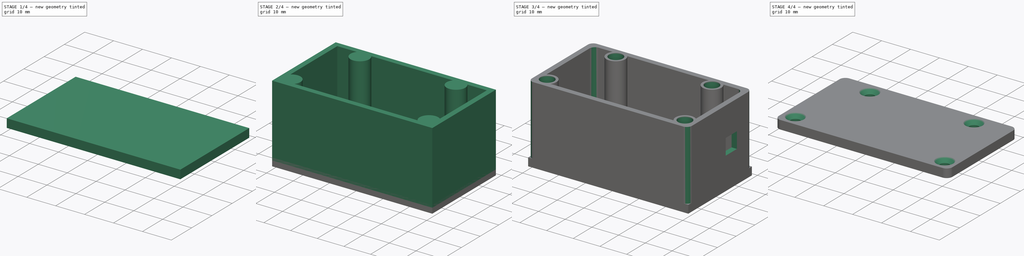
[diagram: build sequence overview — one tinted view per stage of 4, left to right]
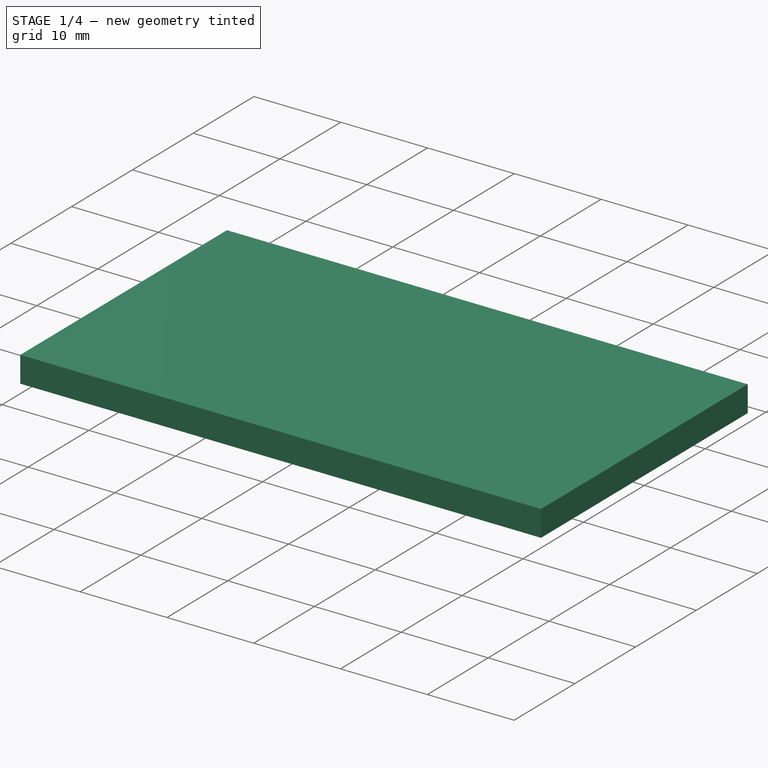
[diagram: stage 1 of 4 — iso view after this stage's code; geometry added in this stage tinted green]
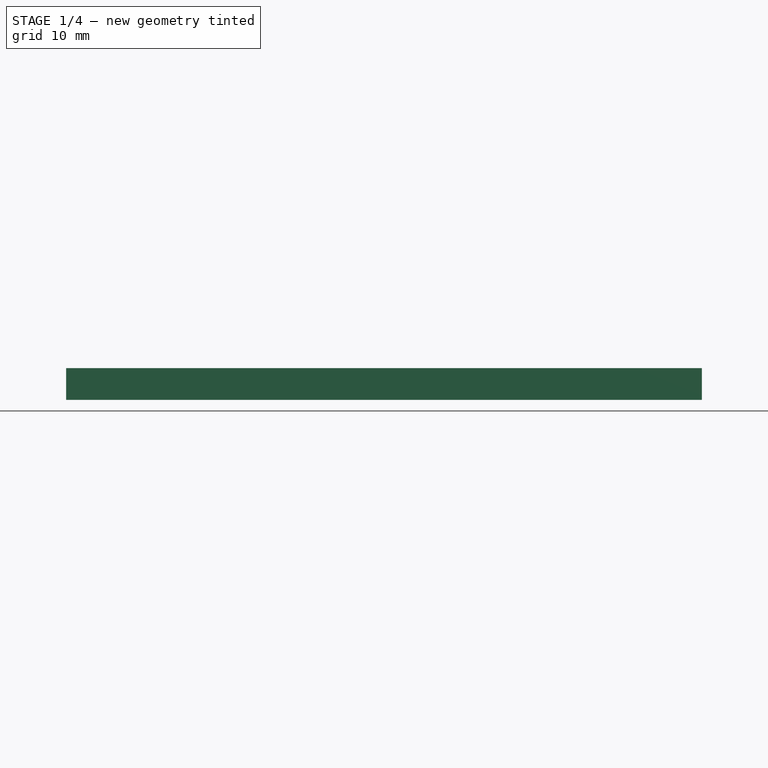
[diagram: stage 1 of 4 — front view after this stage's code; geometry added in this stage tinted green]
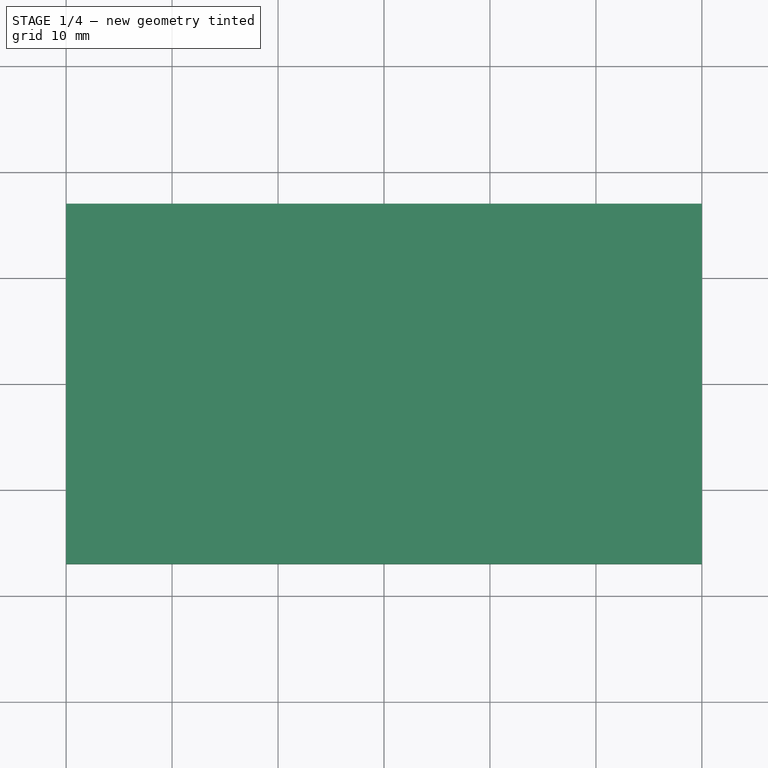
[diagram: stage 1 of 4 — top view after this stage's code; geometry added in this stage tinted green]
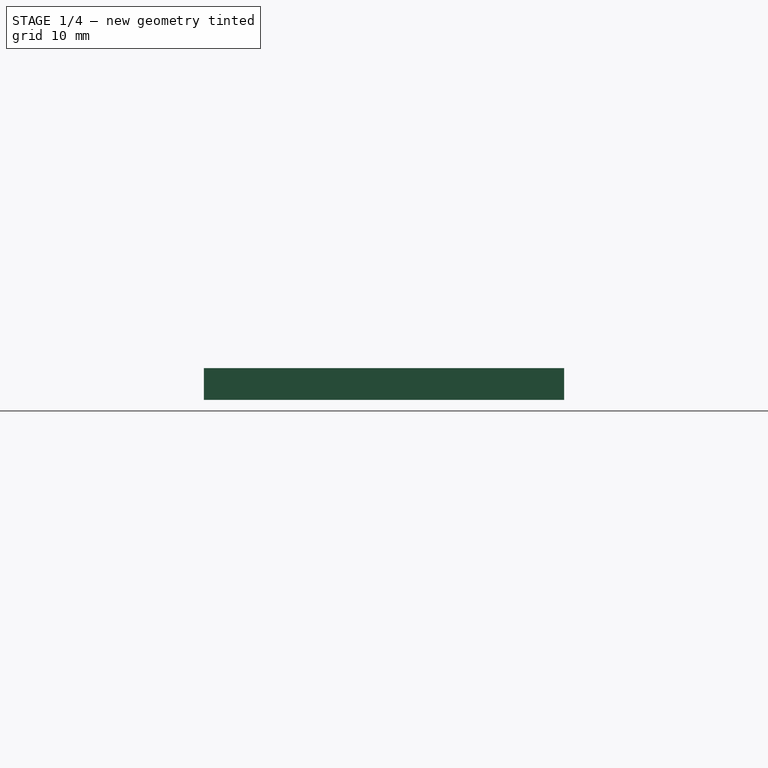
[diagram: stage 1 of 4 — right view after this stage's code; geometry added in this stage tinted green]
FCSTD DOCUMENT  (FreeCAD 0.21R33668 +7 (Git))
Label: battery_cap
License: All rights reserved
LicenseURL: http://en.wikipedia.org/wiki/All_rights_reserved
objects: Sketcher::SketchObject×5, PartDesign::Pad×4, PartDesign::Pocket×2, PartDesign::Hole×2, PartDesign::Fillet×2, PartDesign::Body×2, PartDesign::ShapeBinder×1, PartDesign::SubShapeBinder×1
note: 29 computed .brp shape members not serialized (recipe doc carries the construction recipe); baked Part::Feature solids carry a one-line shape summary decoded from their .brp

FEATURE [Sketcher::SketchObject] Sketch  label="FloorProfile"
  FullyConstrained = true
  MapMode = 5
  Support = -> [XY_Plane]
  sketch-geometry (4):
    g0: LineSegment StartX=-30 StartY=17 StartZ=0 EndX=30 EndY=17 EndZ=0
    g1: LineSegment StartX=30 StartY=17 StartZ=0 EndX=30 EndY=-17 EndZ=0
    g2: LineSegment StartX=30 StartY=-17 StartZ=0 EndX=-30 EndY=-17 EndZ=0
    g3: LineSegment StartX=-30 StartY=-17 StartZ=0 EndX=-30 EndY=17 EndZ=0
  constraints (10):
    c: Coincident(g0,g1)
    c: Coincident(g1,g2)
    c: Coincident(g2,g3)
    c: Coincident(g3,g0)
    c: Horizontal(g2)
    c: Vertical(g1)
    c: Symmetric(g0,g2,g-1)
    c: Symmetric(g0,g0,g-2)
    c: DistanceX(g0,g0) = 60  'Length'
    c: DistanceY(g1,g1) = 34  'Width'
FEATURE [PartDesign::Pad] Pad  label="Floor"
  Direction = (0,0,1)
  Length = 2
  Length2 = 10
  Profile = -> Sketch
  ReferenceAxis = -> Sketch [N_Axis]
  Type = 0
FEATURE [PartDesign::Body] Body  label="Cap"
  Group = -> [Sketch,Pad,Sketch001,Pad001,Sketch002,Pocket,Sketch003,Pad002,Hole,Sketch004,Pocket001,Fillet]
  Origin = -> Origin
  Tip = -> Fillet
FEATURE [PartDesign::ShapeBinder] ShapeBinder  label="FloorBinder"
  Support = -> [Sketch]
  TraceSupport = false
FEATURE [PartDesign::Pad] Pad003  label="CapFloor"
  Direction = (0,0,1)
  Length = 3
  Length2 = 10
  Profile = -> ShapeBinder
  Type = 0
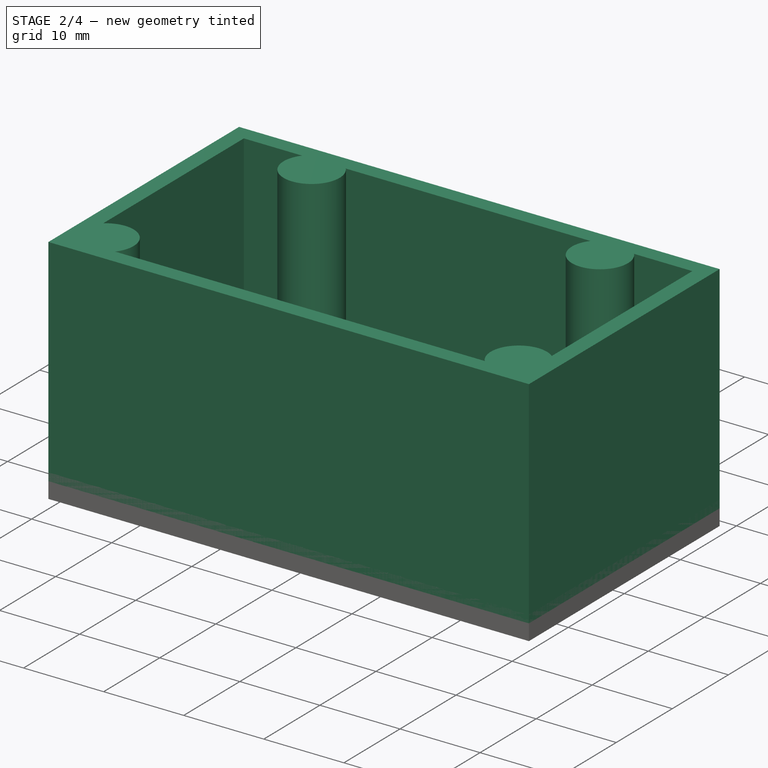
[diagram: stage 2 of 4 — iso view after this stage's code; geometry added in this stage tinted green]
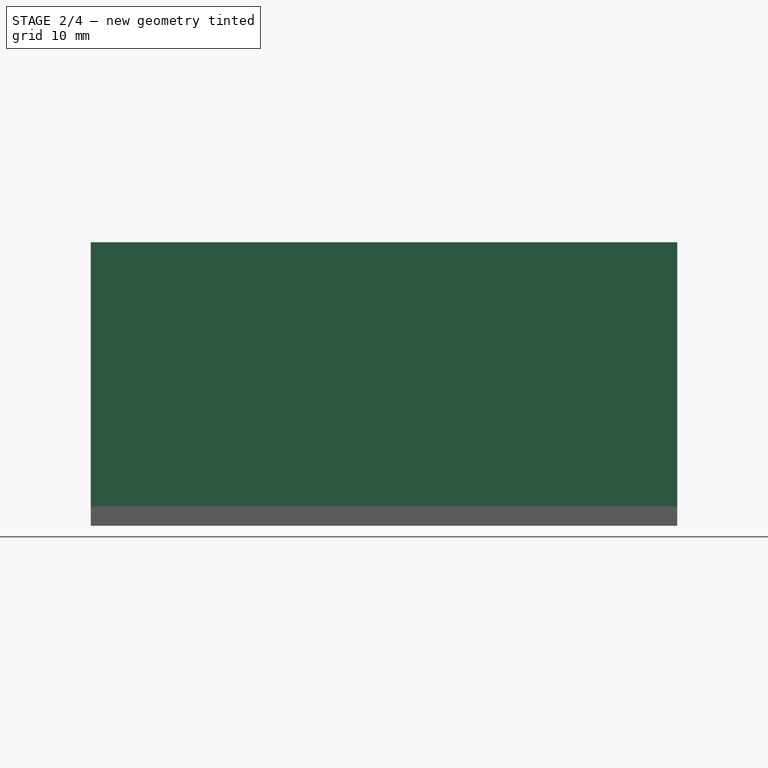
[diagram: stage 2 of 4 — front view after this stage's code; geometry added in this stage tinted green]
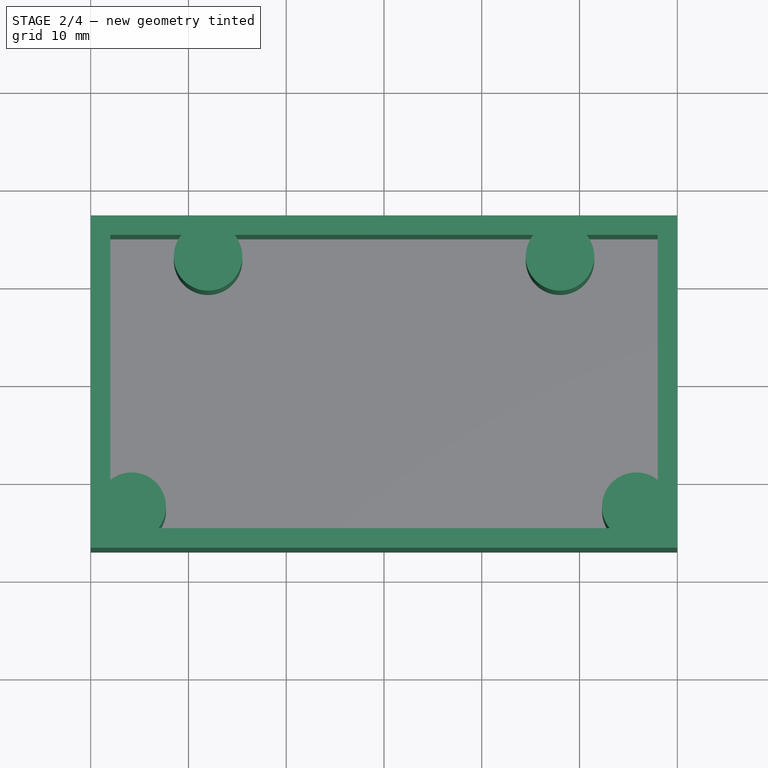
[diagram: stage 2 of 4 — top view after this stage's code; geometry added in this stage tinted green]
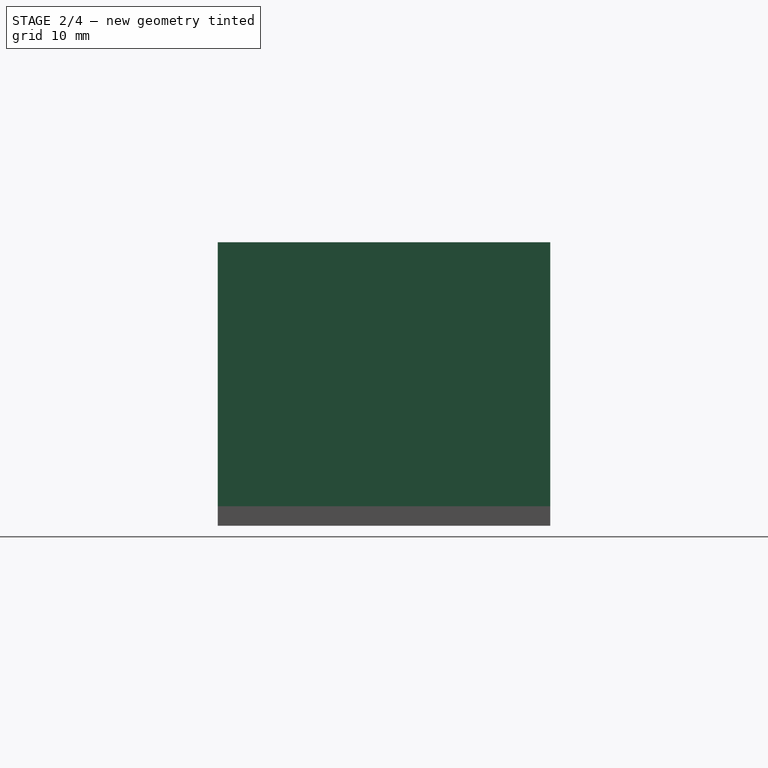
[diagram: stage 2 of 4 — right view after this stage's code; geometry added in this stage tinted green]
FEATURE [Sketcher::SketchObject] Sketch001  label="WallsProfile"
  AttachmentOffset = pos=(0,0,2) rot=(0,0,1;0rad)
  FullyConstrained = true
  MapMode = 5
  Placement = pos=(0,0,2) rot=(0,0,1;0rad)
  Support = -> [XY_Plane]
  expr: .AttachmentOffset.Base.z = <<Floor>>.Length
  expr: Constraints[20] = .Constraints.WallThickness
  expr: Constraints[8] = <<FloorProfile>>.Constraints.Length
  expr: Constraints[9] = <<FloorProfile>>.Constraints.Width
  sketch-geometry (8):
    g0: LineSegment StartX=-30 StartY=17 StartZ=0 EndX=30 EndY=17 EndZ=0
    g1: LineSegment StartX=30 StartY=17 StartZ=0 EndX=30 EndY=-17 EndZ=0
    g2: LineSegment StartX=30 StartY=-17 StartZ=0 EndX=-30 EndY=-17 EndZ=0
    g3: LineSegment StartX=-30 StartY=-17 StartZ=0 EndX=-30 EndY=17 EndZ=0
    g4: LineSegment StartX=-28 StartY=15 StartZ=0 EndX=28 EndY=15 EndZ=0
    g5: LineSegment StartX=28 StartY=15 StartZ=0 EndX=28 EndY=-15 EndZ=0
    g6: LineSegment StartX=28 StartY=-15 StartZ=0 EndX=-28 EndY=-15 EndZ=0
    g7: LineSegment StartX=-28 StartY=-15 StartZ=0 EndX=-28 EndY=15 EndZ=0
  constraints (21):
    c: Coincident(g0,g1)
    c: Coincident(g1,g2)
    c: Coincident(g2,g3)
    c: Coincident(g3,g0)
    c: Horizontal(g0)
    c: Vertical(g1)
    c: Symmetric(g2,g1,g-2)
    c: Symmetric(g2,g0,g-1)
    c: DistanceX(g2,g2) = 60
    c: DistanceY(g1,g1) = 34
    c: Coincident(g4,g5)
    c: Coincident(g5,g6)
    c: Coincident(g6,g7)
    c: Coincident(g7,g4)
    c: Horizontal(g4)
    c: Horizontal(g6)
    c: Vertical(g5)
    c: Vertical(g7)
    c: Symmetric(g6,g4,g-1)
    c: DistanceY(g2,g6) = 2  'WallThickness'
    c: DistanceX(g2,g6) = 2
FEATURE [PartDesign::Pad] Pad001  label="Walls"
  BaseFeature = -> Pad
  Direction = (0,0,1)
  Length = 27
  Length2 = 10
  Profile = -> Sketch001
  ReferenceAxis = -> Sketch001 [N_Axis]
  Type = 0
FEATURE [Sketcher::SketchObject] Sketch002  label="HolesProfile"
  AttachmentOffset = pos=(0,0,2) rot=(0,0,1;0rad)
  FullyConstrained = true
  MapMode = 5
  Placement = pos=(0,0,2) rot=(0,0,1;0rad)
  Support = -> [XY_Plane]
  expr: Constraints[1] = .Constraints.HoleDiameter
  expr: Constraints[2] = .Constraints.HoleDiameter
  expr: Constraints[3] = .Constraints.HoleDiameter
  sketch-geometry (4):
    g0: Circle CenterX=-25 CenterY=12.1 CenterZ=0 NormalX=0 NormalY=0 NormalZ=1 AngleXU=0 Radius=1.6
    g1: Circle CenterX=-19.6 CenterY=-12.2 CenterZ=0 NormalX=0 NormalY=0 NormalZ=1 AngleXU=0 Radius=1.6
    g2: Circle CenterX=25.2 CenterY=11.9 CenterZ=0 NormalX=0 NormalY=0 NormalZ=1 AngleXU=0 Radius=1.6
    g3: Circle CenterX=19.6 CenterY=-12.2 CenterZ=0 NormalX=0 NormalY=0 NormalZ=1 AngleXU=0 Radius=1.6
  constraints (11):
    c: Diameter(g0) = 3.2  'HoleDiameter'
    c: Diameter(g2) = 3.2
    c: Diameter(g3) = 3.2
    c: Diameter(g1) = 3.2
    c: DistanceY(g1,g0) = 24.3
    c: DistanceX(g0,g1) = 5.4
    c: DistanceX(g0,g2) = 50.2
    c: DistanceY(g2,g0) = 0.2
    c: DistanceX(g0,g3) = 44.6
    c: Symmetric(g1,g3,g-2)
    c: DistanceY(g-1,g0) = 12.1
FEATURE [PartDesign::Pocket] Pocket
  BaseFeature = -> Pad001
  Direction = (0,0,-1)
  Length = 5
  Length2 = 5
  Profile = -> Sketch002
  ReferenceAxis = -> Sketch002 [N_Axis]
  Type = 2
FEATURE [Sketcher::SketchObject] Sketch003  label="BossesProfile"
  AttachmentOffset = pos=(0,0,29) rot=(0,0,1;0rad)
  FullyConstrained = true
  MapMode = 5
  Placement = pos=(0,0,29) rot=(0,0,1;0rad)
  Support = -> [XY_Plane]
  expr: .AttachmentOffset.Base.z = <<Floor>>.Length + <<Walls>>.Length
  expr: Constraints[1] = <<FloorProfile>>.Constraints.Length / 2 - 4.2 mm
  expr: Constraints[2] = <<FloorProfile>>.Constraints.Width / 2 - 4.2 mm
  expr: Constraints[3] = .Constraints.BossDiameter
  expr: Constraints[5] = .Constraints.BossDiameter
  expr: Constraints[6] = .Constraints.BossDiameter
  expr: Constraints[7] = <<FloorProfile>>.Constraints.Width / 2 - 4.2 mm
  sketch-geometry (4):
    g0: Circle CenterX=-25.8 CenterY=-12.8 CenterZ=0 NormalX=0 NormalY=0 NormalZ=1 AngleXU=0 Radius=3.5
    g1: Circle CenterX=25.8 CenterY=-12.8 CenterZ=0 NormalX=0 NormalY=0 NormalZ=1 AngleXU=0 Radius=3.5
    g2: Circle CenterX=-18 CenterY=12.8 CenterZ=0 NormalX=0 NormalY=0 NormalZ=1 AngleXU=0 Radius=3.5
    g3: Circle CenterX=18 CenterY=12.8 CenterZ=0 NormalX=0 NormalY=0 NormalZ=1 AngleXU=0 Radius=3.5
  constraints (10):
    c: Diameter(g0) = 7  'BossDiameter'
    c: DistanceX(g0,g-1) = 25.8
    c: DistanceY(g0,g-1) = 12.8
    c: Diameter(g1) = 7
    c: Symmetric(g1,g0,g-2)
    c: Diameter(g2) = 7
    c: Diameter(g3) = 7
    c: DistanceY(g-1,g2) = 12.8
    c: DistanceX(g2,g-1) = 18
    c: Symmetric(g3,g2,g-2)
FEATURE [PartDesign::Pad] Pad002  label="Bosses"
  BaseFeature = -> Pocket
  Direction = (0,0,1)
  Length = 27
  Length2 = 10
  Profile = -> Sketch003
  ReferenceAxis = -> Sketch003 [N_Axis]
  Reversed = true
  Type = 0
  expr: Length = <<Walls>>.Length
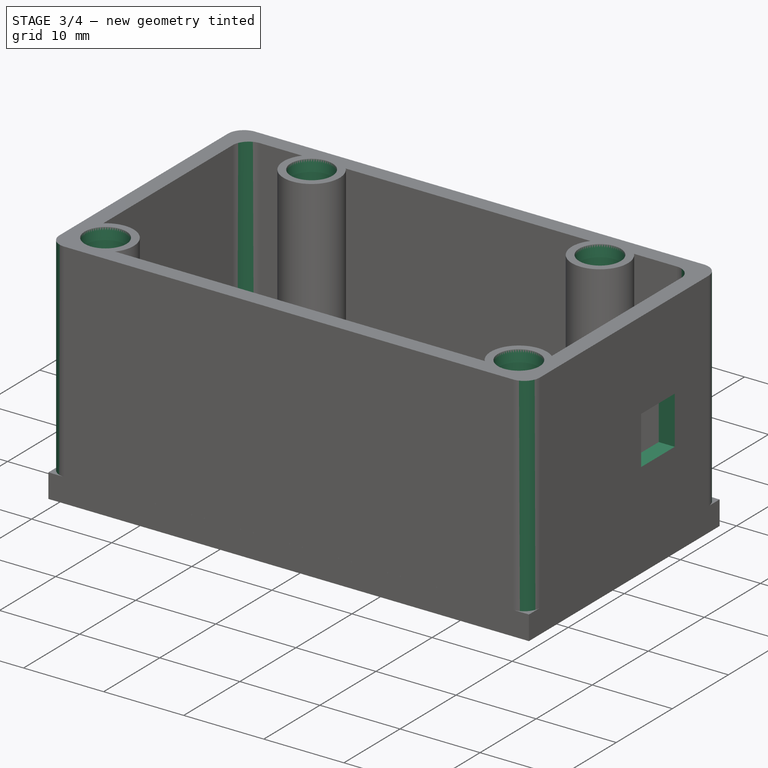
[diagram: stage 3 of 4 — iso view after this stage's code; geometry added in this stage tinted green]
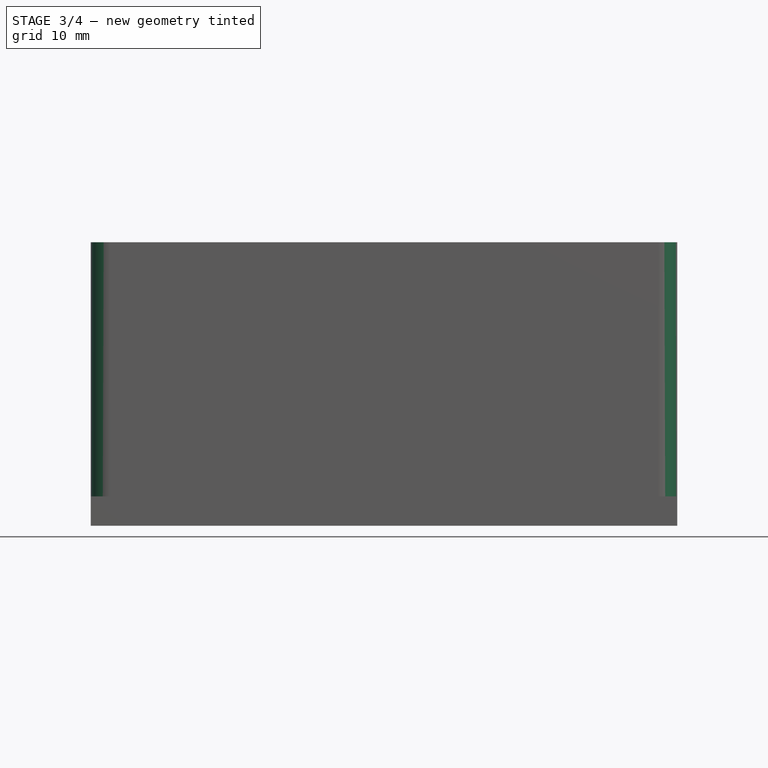
[diagram: stage 3 of 4 — front view after this stage's code; geometry added in this stage tinted green]
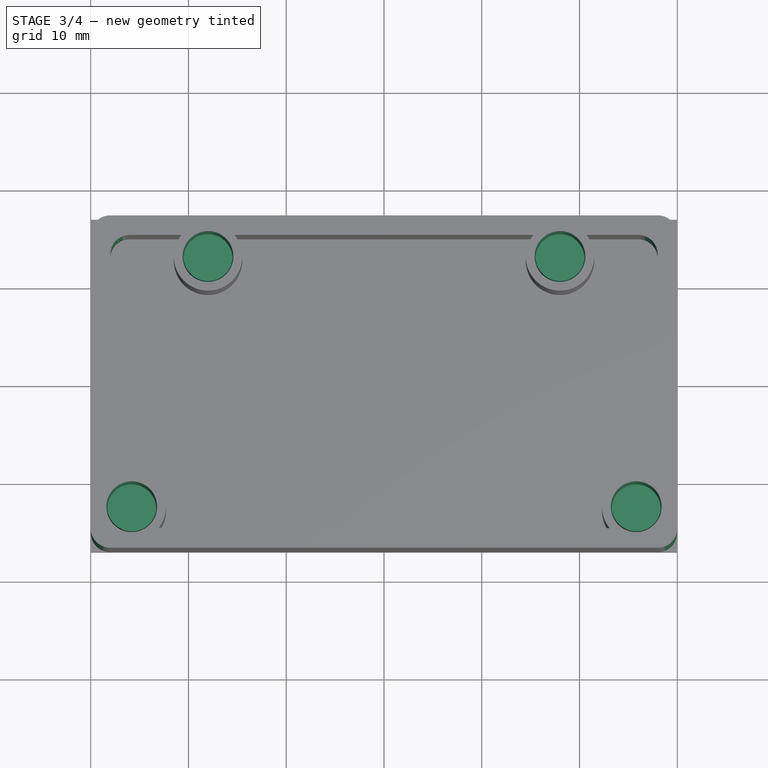
[diagram: stage 3 of 4 — top view after this stage's code; geometry added in this stage tinted green]
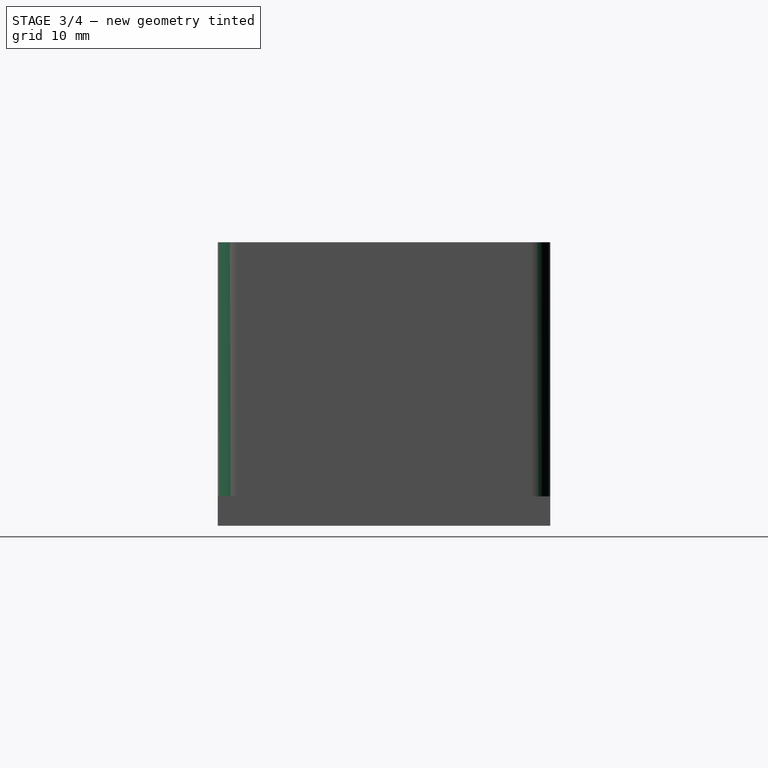
[diagram: stage 3 of 4 — right view after this stage's code; geometry added in this stage tinted green]
FEATURE [PartDesign::Hole] Hole
  BaseFeature = -> Pad002
  CustomThreadClearance = 0
  Depth = 13
  DepthType = 0
  Diameter = 5
  DrillForDepth = false
  DrillPoint = 0
  DrillPointAngle = 118
  HoleCutCountersinkAngle = 8
  HoleCutCustomValues = false
  HoleCutDepth = 0
  HoleCutDiameter = 5.2
  HoleCutType = 2
  ModelThread = false
  Profile = -> Sketch003
  Tapered = false
  TaperedAngle = 90
  ThreadClass = 0
  ThreadDepth = 13
  ThreadDepthType = 0
  ThreadDirection = 0
  ThreadFit = 0
  ThreadSize = 0
  ThreadType = 0
  Threaded = false
  UseCustomThreadClearance = false
FEATURE [Sketcher::SketchObject] Sketch004
  AttachmentOffset = pos=(0,0,30) rot=(0,0,1;0rad)
  FullyConstrained = true
  MapMode = 5
  Placement = pos=(30,-6.7e-15,6.7e-15) rot=(0.57735,0.57735,0.57735;2.0944rad)
  Support = -> [YZ_Plane]
  expr: .AttachmentOffset.Base.z = <<FloorProfile>>.Constraints.Length / 2
  sketch-geometry (4):
    g0: LineSegment StartX=3 StartY=18 StartZ=0 EndX=9 EndY=18 EndZ=0
    g1: LineSegment StartX=9 StartY=18 StartZ=0 EndX=9 EndY=12 EndZ=0
    g2: LineSegment StartX=9 StartY=12 StartZ=0 EndX=3 EndY=12 EndZ=0
    g3: LineSegment StartX=3 StartY=12 StartZ=0 EndX=3 EndY=18 EndZ=0
  constraints (12):
    c: Coincident(g0,g1)
    c: Coincident(g1,g2)
    c: Coincident(g2,g3)
    c: Coincident(g3,g0)
    c: Horizontal(g0)
    c: Horizontal(g2)
    c: Vertical(g1)
    c: Vertical(g3)
    c: DistanceX(g2,g2) = 6
    c: DistanceY(g1,g1) = 6
    c: DistanceY(g-1,g1) = 12
    c: DistanceX(g-1,g2) = 3
FEATURE [PartDesign::Pocket] Pocket001
  BaseFeature = -> Hole
  Direction = (-1,2e-16,-3e-16)
  Length = 5
  Length2 = 5
  Profile = -> Sketch004
  ReferenceAxis = -> Sketch004 [N_Axis]
  Type = 2
FEATURE [PartDesign::Fillet] Fillet
  Base = -> Pocket001 [Edge23,Edge17,Edge86,Edge70,Edge16,Edge20]
  BaseFeature = -> Pocket001
  Radius = 2
  SupportTransform = false
  UseAllEdges = false
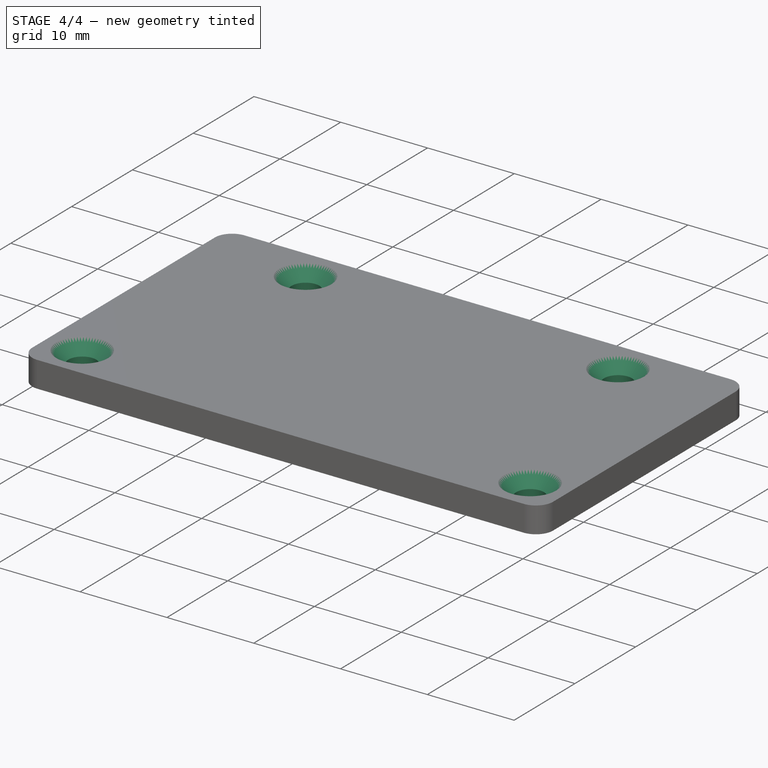
[diagram: stage 4 of 4 — iso view after this stage's code; geometry added in this stage tinted green]
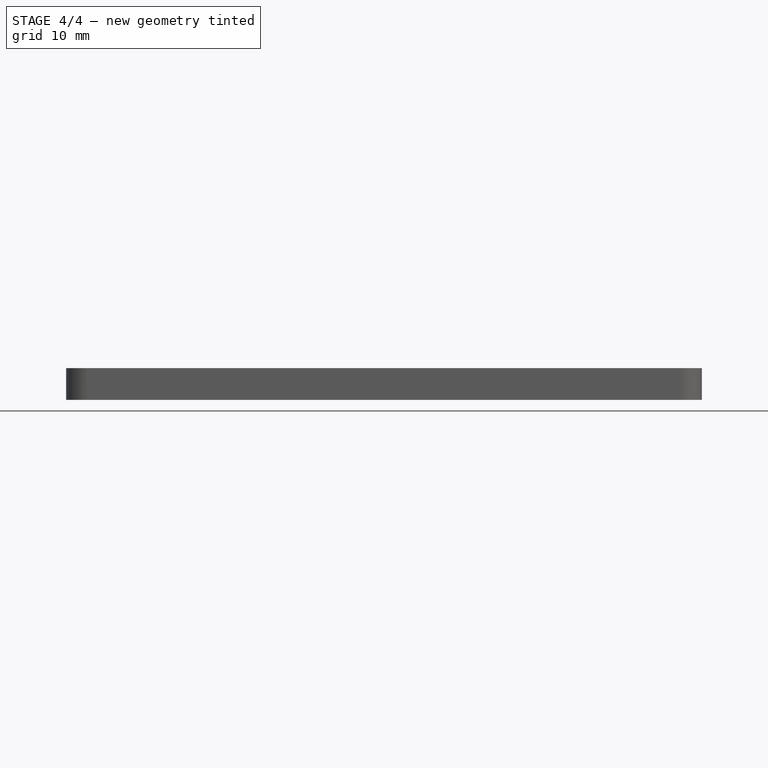
[diagram: stage 4 of 4 — front view after this stage's code; geometry added in this stage tinted green]
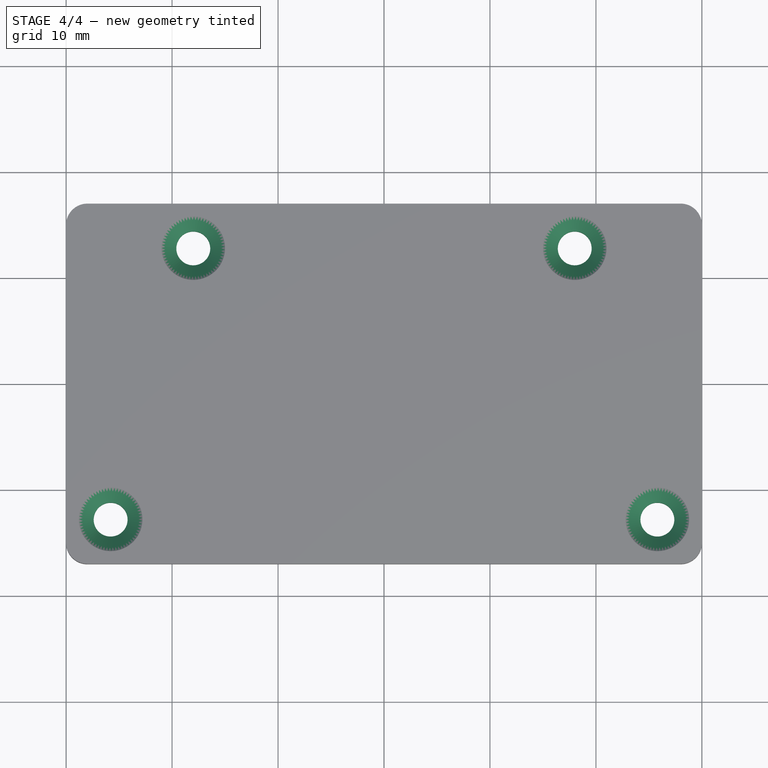
[diagram: stage 4 of 4 — top view after this stage's code; geometry added in this stage tinted green]
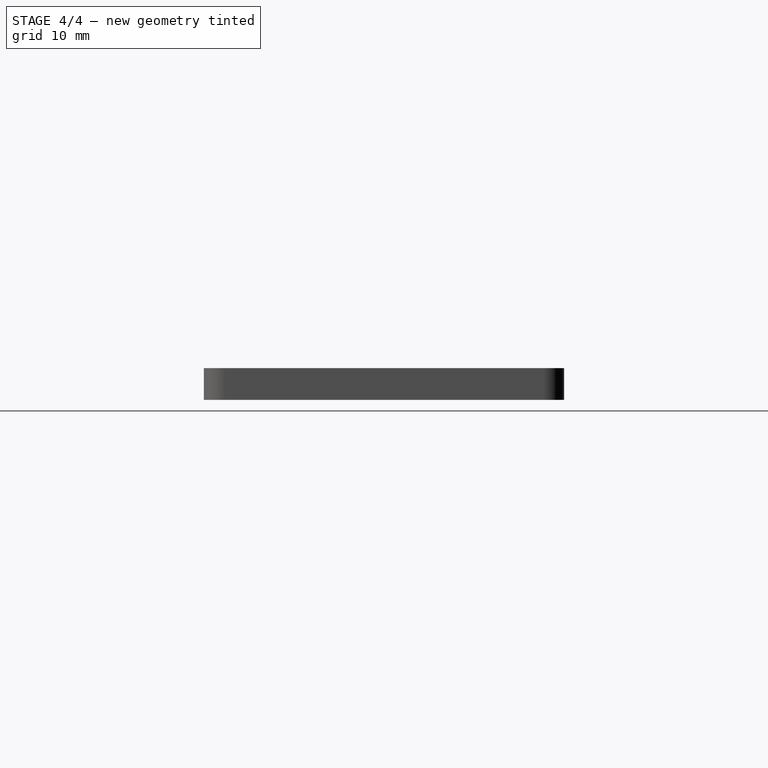
[diagram: stage 4 of 4 — right view after this stage's code; geometry added in this stage tinted green]
FEATURE [PartDesign::SubShapeBinder] Binder  label="BossesBinder"
  BindCopyOnChange = 0
  BindMode = 0
  ClaimChildren = false
  Context = -> Body001 [Hole001.Binder.]
  Fuse = false
  MakeFace = true
  OffsetFill = false
  OffsetIntersection = false
  OffsetJoinType = 0
  OffsetOpenResult = false
  PartialLoad = false
  Placement = pos=(0,0,-26) rot=(0,0,1;0rad)
  Relative = true
  Support = -> [Body[Hole.Sketch003.]]
  _Version = 2
  expr: .Placement.Base.z = <<CapFloor>>.Length - <<Walls>>.Length - <<Floor>>.Length
FEATURE [PartDesign::Hole] Hole001  label="Holes"
  BaseFeature = -> Pad003
  CustomThreadClearance = 0
  Depth = 139.439
  DepthType = 1
  Diameter = 3.2
  DrillForDepth = false
  DrillPoint = 1
  DrillPointAngle = 118
  HoleCutCountersinkAngle = 90
  HoleCutCustomValues = false
  HoleCutDepth = 1.7
  HoleCutDiameter = 6
  HoleCutType = 2
  ModelThread = false
  Profile = -> Binder
  Tapered = false
  TaperedAngle = 90
  ThreadClass = 0
  ThreadDepth = 139.439
  ThreadDepthType = 0
  ThreadDirection = 0
  ThreadFit = 0
  ThreadSize = 0
  ThreadType = 0
  Threaded = false
  UseCustomThreadClearance = false
FEATURE [PartDesign::Fillet] Fillet001
  Base = -> Hole001 [Edge8,Edge2,Edge5,Edge1]
  BaseFeature = -> Hole001
  Radius = 2
  SupportTransform = false
  UseAllEdges = false
FEATURE [PartDesign::Body] Body001  label="Lid"
  Group = -> [ShapeBinder,Pad003,Binder,Hole001,Fillet001]
  Origin = -> Origin001
  Tip = -> Fillet001
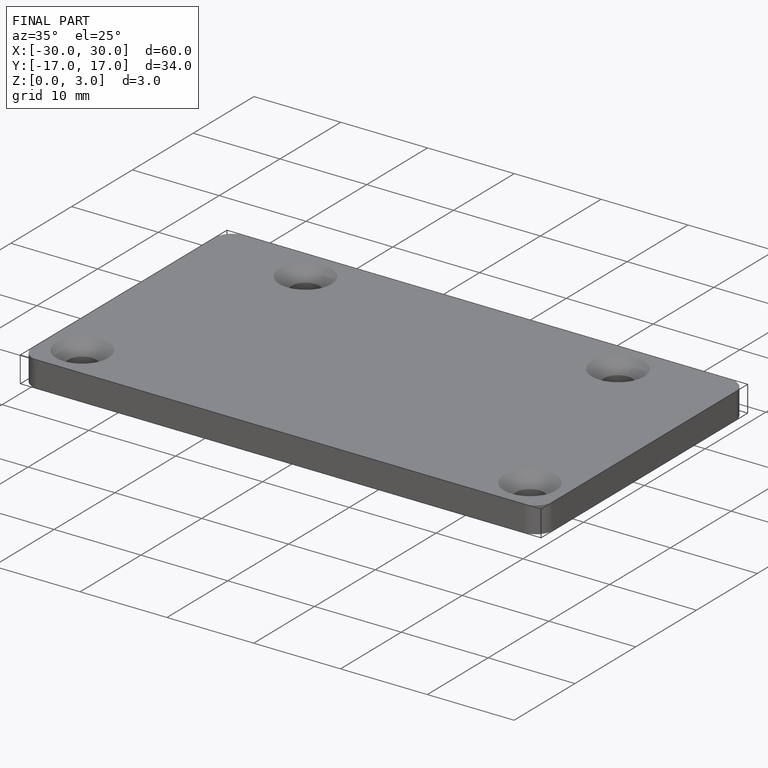
[diagram: finished part — iso view with bounding-box wireframe]
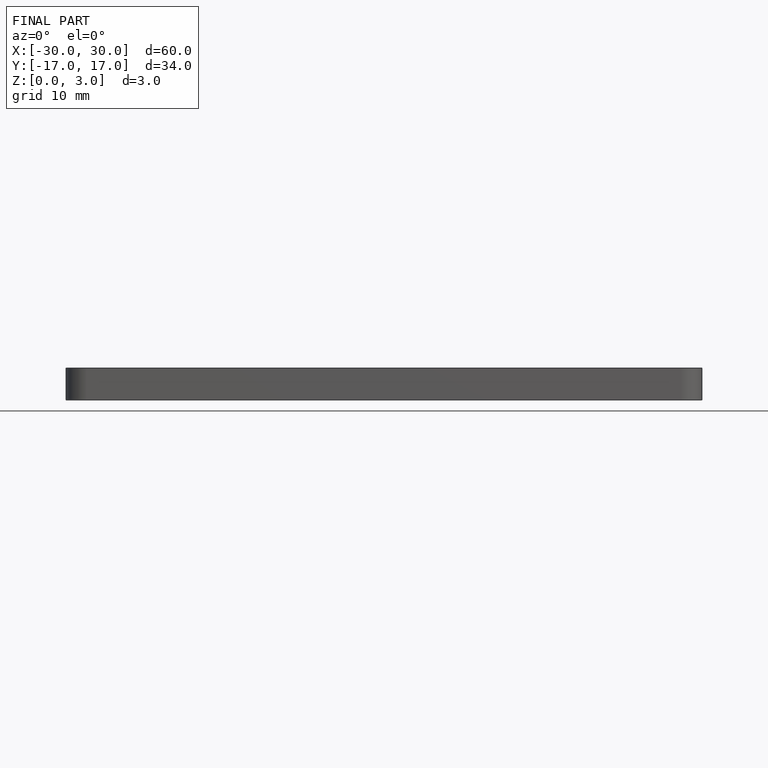
[diagram: finished part — front view with bounding-box wireframe]
